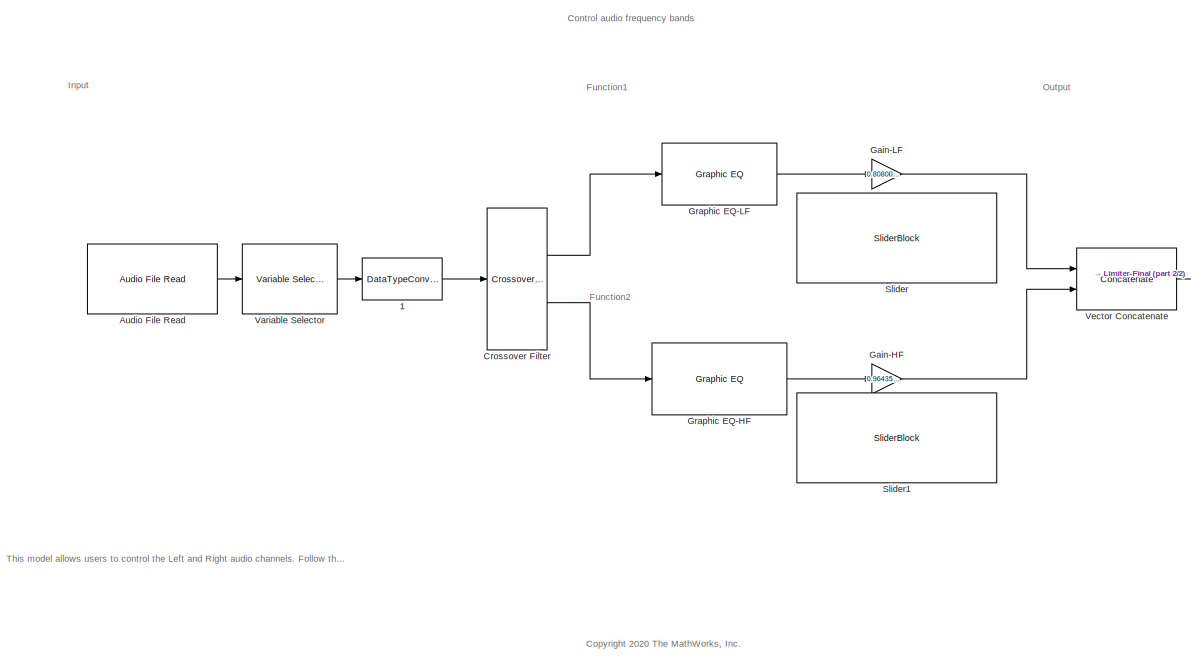
[diagram: root canvas - part 1/2, center side, full height]
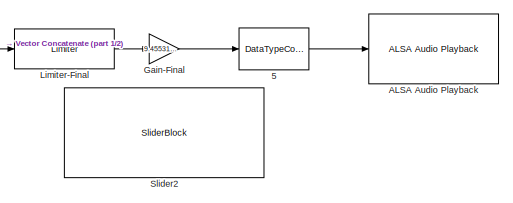
[diagram: root canvas - part 2/2, middle right region]
MODEL slx_95420741cbbf
KIND model
CONFIG AbsTol = auto
CONFIG EnableMultiTasking = off
CONFIG FixedStep = auto
CONFIG MaxStep = auto
CONFIG MinStep = auto
CONFIG RelTol = 1e-3
CONFIG SampleTimeConstraint = Unconstrained
CONFIG SolverName = VariableStepAuto
CONFIG StartTime = 0.0
CONFIG StopTime = 10.0
BLOCK [DataTypeConversion]  1
  OutDataTypeStr = single
  RndMeth = Floor
  SaturateOnIntegerOverflow = off
BLOCK [DataTypeConversion]  5
  OutDataTypeStr = int16
  RndMeth = Floor
  SaturateOnIntegerOverflow = off
BLOCK [Reference] ALSA Audio Playback  REF=raspberrypiAVlib/ALSA Audio Playback
  Ports = [1]
  SourceBlock = raspberrypiAVlib/ALSA Audio Playback
  SourceProductBaseCode = RASPPI
  SourceType = codertarget.raspi.internal.RaspiALSAAudioPlayback
BLOCK [Reference] Audio File Read  REF=raspberrypiAVlib/Audio File Read
  Ports = [0, 1]
  SourceBlock = raspberrypiAVlib/Audio File Read
  SourceProductBaseCode = RASPPI
  SourceType = codertarget.raspi.internal.RaspiAudioFileRead
BLOCK [Reference] Crossover Filter  REF=audiofilters/Crossover Filter
  Ports = [1, 2]
  SourceBlock = audiofilters/Crossover Filter
  SourceProductBaseCode = AU
  SourceType = audio.simulink.crossover
BLOCK [Gain] Gain-Final
  Gain = 9.455319667862447
  OutDataTypeStr = int16
BLOCK [Gain] Gain-HF
  Gain = 0.9643520823982061
  OutDataTypeStr = single
BLOCK [Gain] Gain-LF
  Gain = 0.8080000000000001
  OutDataTypeStr = single
BLOCK [Reference] Graphic EQ-HF  REF=audiofilters/Graphic EQ
  Ports = [1, 1]
  SourceBlock = audiofilters/Graphic EQ
  SourceProductBaseCode = AU
  SourceType = audio.simulink.GraphicEQ
BLOCK [Reference] Graphic EQ-LF  REF=audiofilters/Graphic EQ
  Ports = [1, 1]
  SourceBlock = audiofilters/Graphic EQ
  SourceProductBaseCode = AU
  SourceType = audio.simulink.GraphicEQ
BLOCK [Reference] Limiter-Final  REF=audiodynamicrange/Limiter
  Ports = [1, 1]
  SourceBlock = audiodynamicrange/Limiter
  SourceProductBaseCode = AU
  SourceType = audio.simulink.DynamicRangeLimiter
BLOCK [SliderBlock] Slider
  LabelPosition = Bottom
  ScaleMax = 1
BLOCK [SliderBlock] Slider1
  LabelPosition = Bottom
  ScaleMax = 1
BLOCK [SliderBlock] Slider2
  LabelPosition = Bottom
  ScaleMax = 10
BLOCK [Reference] Variable Selector  REF=dspindex/Variable
Selector
  Ports = [1, 1]
  SourceBlock = dspindex/Variable\nSelector
  SourceProductBaseCode = DS
  SourceType = Variable Selector
BLOCK [Concatenate] Vector Concatenate
  ConcatenateDimension = 2
  Mode = Multidimensional array
  Ports = [2, 1]
ANNOTATION (root): Control audio frequency bands
ANNOTATION (root): This model allows users to control the Left and Right audio channels. Follow the steps mentioned in the documentation to do explicit partitioning and concurrently execute tasks on a multicore Raspberry Pi
ANNOTATION (root): <copyright redacted>
ANNOTATION (root): Function1
ANNOTATION (root): Function2
ANNOTATION (root): Input
ANNOTATION (root): Output
LINE  1:1 -> Crossover Filter:1
LINE  5:1 -> ALSA Audio Playback:1
LINE Audio File Read:1 -> Variable Selector:1
LINE Crossover Filter:1 -> Graphic EQ-LF:1
LINE Crossover Filter:2 -> Graphic EQ-HF:1
LINE Gain-Final:1 ->  5:1
LINE Gain-HF:1 -> Vector Concatenate:2
LINE Gain-LF:1 -> Vector Concatenate:1
LINE Graphic EQ-HF:1 -> Gain-HF:1
LINE Graphic EQ-LF:1 -> Gain-LF:1
LINE Limiter-Final:1 -> Gain-Final:1
LINE Variable Selector:1 ->  1:1
LINE Vector Concatenate:1 -> Limiter-Final:1
